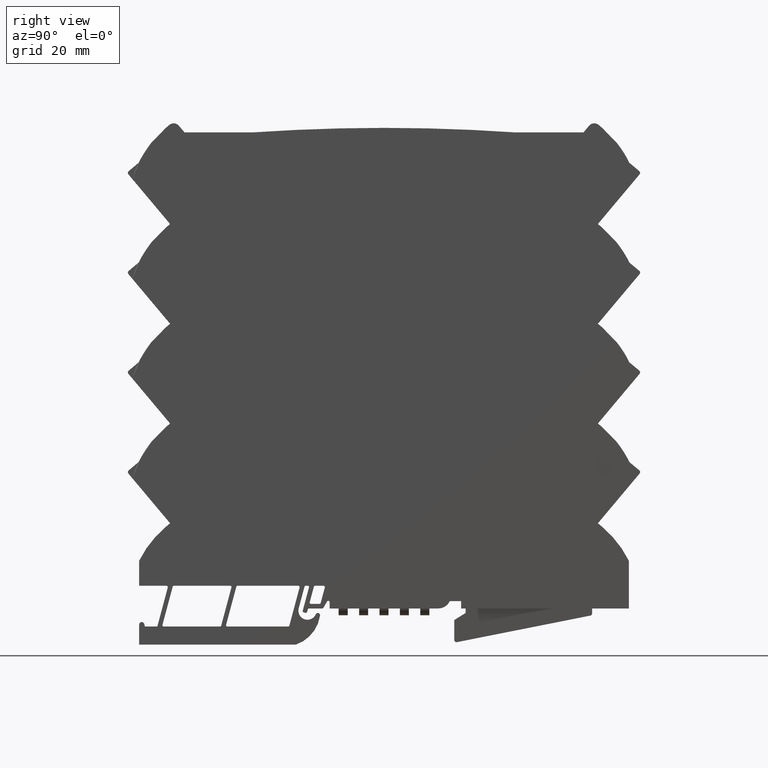
[diagram: clean part render]
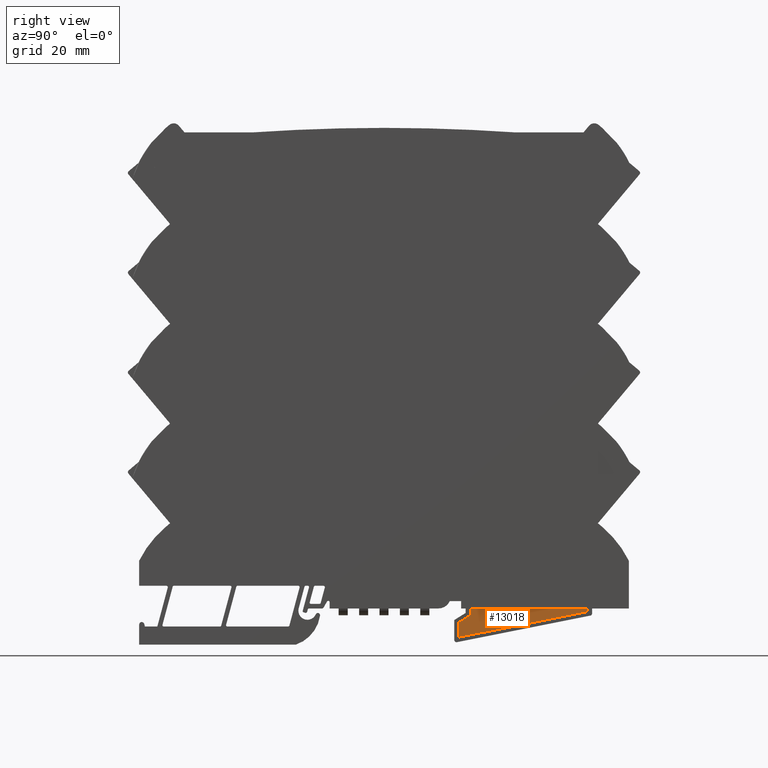
[diagram: same view with one face highlighted and labeled with its STEP entity id]
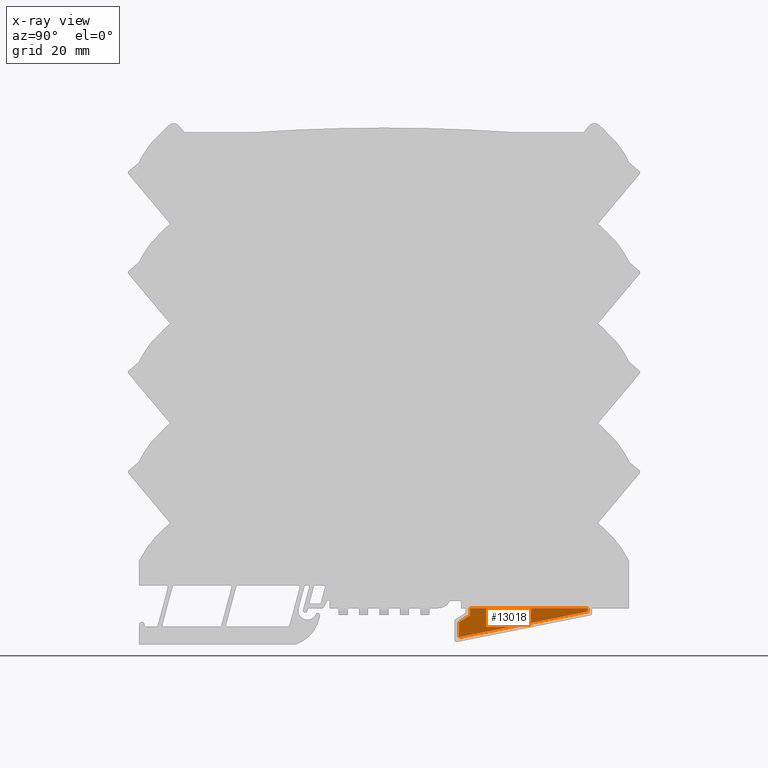
[diagram: x-ray of the same camera — body ghosted, the highlighted face saturated]
A machine part, right view. The second image highlights one B-rep face of the part: STEP entity #13018.
The next image is the same camera in x-ray: the body ghosted, the highlighted face saturated — about 0% of this face is hidden behind the body in this view.
In plain terms, the highlighted planar face has unit normal (-1, 0, 0).
Its self-contained STEP definition (entity closure, byte-faithful):
#227 = EDGE_CURVE ( 'NONE', #9824, #7325, #10535, .T. ) ;
#429 = LINE ( 'NONE', #2607, #7928 ) ;
#550 = VECTOR ( 'NONE', #5864, 39.37007874015748143 ) ;
#582 = CARTESIAN_POINT ( 'NONE',  ( 0.005905511811023620231, 1.767817798627823622, -4.160612839142502573 ) ) ;
#840 = VECTOR ( 'NONE', #1814, 39.37007874015749564 ) ;
#1735 = DIRECTION ( 'NONE',  ( 0.000000000000000000, -0.000000000000000000, -1.000000000000000000 ) ) ;
#1814 = DIRECTION ( 'NONE',  ( 0.000000000000000000, -0.9807281317789259267, -0.1953774079504010108 ) ) ;
#2189 = ORIENTED_EDGE ( 'NONE', *, *, #2361, .F. ) ;
#2361 = EDGE_CURVE ( 'NONE', #7325, #2836, #5136, .T. ) ;
#2373 = CARTESIAN_POINT ( 'NONE',  ( 0.005905511811023620231, 0.7480314960629925736, -4.133858267716535195 ) ) ;
#2404 = DIRECTION ( 'NONE',  ( -0.000000000000000000, -0.000000000000000000, -1.000000000000000000 ) ) ;
#2607 = CARTESIAN_POINT ( 'NONE',  ( 0.005905511811023620231, 1.732283464566929165, -4.133858267716535195 ) ) ;
#2752 = EDGE_CURVE ( 'NONE', #8497, #3467, #7028, .T. ) ;
#2836 = VERTEX_POINT ( 'NONE', #3323 ) ;
#3323 = CARTESIAN_POINT ( 'NONE',  ( 0.005905511811023620231, 0.6496062992125987146, -4.383379227927326482 ) ) ;
#3445 = CARTESIAN_POINT ( 'NONE',  ( 0.005905511811023620231, 0.000000000000000000, 0.000000000000000000 ) ) ;
#3467 = VERTEX_POINT ( 'NONE', #12383 ) ;
#3470 = CARTESIAN_POINT ( 'NONE',  ( 0.005905511811023620231, 1.767817798627823622, 0.000000000000000000 ) ) ;
#3545 = ORIENTED_EDGE ( 'NONE', *, *, #7680, .T. ) ;
#4539 = DIRECTION ( 'NONE',  ( -1.000000000000000000, 0.000000000000000000, 0.000000000000000000 ) ) ;
#5136 = LINE ( 'NONE', #582, #840 ) ;
#5295 = VECTOR ( 'NONE', #13193, 39.37007874015748143 ) ;
#5703 = VECTOR ( 'NONE', #2404, 39.37007874015748143 ) ;
#5864 = DIRECTION ( 'NONE',  ( 0.000000000000000000, 0.8488823019602816933, 0.5285819117399052081 ) ) ;
#6142 = DIRECTION ( 'NONE',  ( 0.000000000000000000, -1.000000000000000000, -0.000000000000000000 ) ) ;
#6920 = ORIENTED_EDGE ( 'NONE', *, *, #11900, .F. ) ;
#7028 = LINE ( 'NONE', #14999, #550 ) ;
#7230 = CARTESIAN_POINT ( 'NONE',  ( 0.005905511811023620231, 0.6496062992125986035, 0.000000000000000000 ) ) ;
#7325 = VERTEX_POINT ( 'NONE', #12137 ) ;
#7573 = VERTEX_POINT ( 'NONE', #2373 ) ;
#7615 = CARTESIAN_POINT ( 'NONE',  ( 0.005905511811023620231, 0.7480314960629925736, -4.195092116276698313 ) ) ;
#7638 = EDGE_LOOP ( 'NONE', ( #8671, #8561, #6920, #2189, #7851, #3545 ) ) ;
#7680 = EDGE_CURVE ( 'NONE', #9824, #7573, #429, .T. ) ;
#7851 = ORIENTED_EDGE ( 'NONE', *, *, #227, .F. ) ;
#7928 = VECTOR ( 'NONE', #6142, 39.37007874015748143 ) ;
#8262 = VECTOR ( 'NONE', #1735, 39.37007874015748143 ) ;
#8497 = VERTEX_POINT ( 'NONE', #14475 ) ;
#8561 = ORIENTED_EDGE ( 'NONE', *, *, #2752, .F. ) ;
#8671 = ORIENTED_EDGE ( 'NONE', *, *, #12102, .T. ) ;
#9148 = AXIS2_PLACEMENT_3D ( 'NONE', #3445, #4539, #13973 ) ;
#9824 = VERTEX_POINT ( 'NONE', #10371 ) ;
#10371 = CARTESIAN_POINT ( 'NONE',  ( 0.005905511811023620231, 1.767817798627823622, -4.133858267716535195 ) ) ;
#10535 = LINE ( 'NONE', #3470, #5703 ) ;
#10869 = LINE ( 'NONE', #7230, #5295 ) ;
#11399 = LINE ( 'NONE', #7615, #8262 ) ;
#11900 = EDGE_CURVE ( 'NONE', #2836, #8497, #10869, .T. ) ;
#12102 = EDGE_CURVE ( 'NONE', #7573, #3467, #11399, .T. ) ;
#12137 = CARTESIAN_POINT ( 'NONE',  ( 0.005905511811023586403, 1.767817798627823622, -4.160612839142502573 ) ) ;
#12383 = CARTESIAN_POINT ( 'NONE',  ( 0.005905511811023620231, 0.7480314960629925736, -4.195092116276698313 ) ) ;
#12874 = FACE_OUTER_BOUND ( 'NONE', #7638, .T. ) ;
#13018 = ADVANCED_FACE ( 'NONE', ( #12874 ), #13106, .F. ) ;
#13106 = PLANE ( 'NONE',  #9148 ) ;
#13193 = DIRECTION ( 'NONE',  ( 0.000000000000000000, 0.000000000000000000, 1.000000000000000000 ) ) ;
#13973 = DIRECTION ( 'NONE',  ( 0.000000000000000000, 0.000000000000000000, 1.000000000000000000 ) ) ;
#14475 = CARTESIAN_POINT ( 'NONE',  ( 0.005905511811023620231, 0.6496062992125989366, -4.256379503932699038 ) ) ;
#14999 = CARTESIAN_POINT ( 'NONE',  ( 0.005905511811023620231, 0.6496062992125987146, -4.256379503932699038 ) ) ;